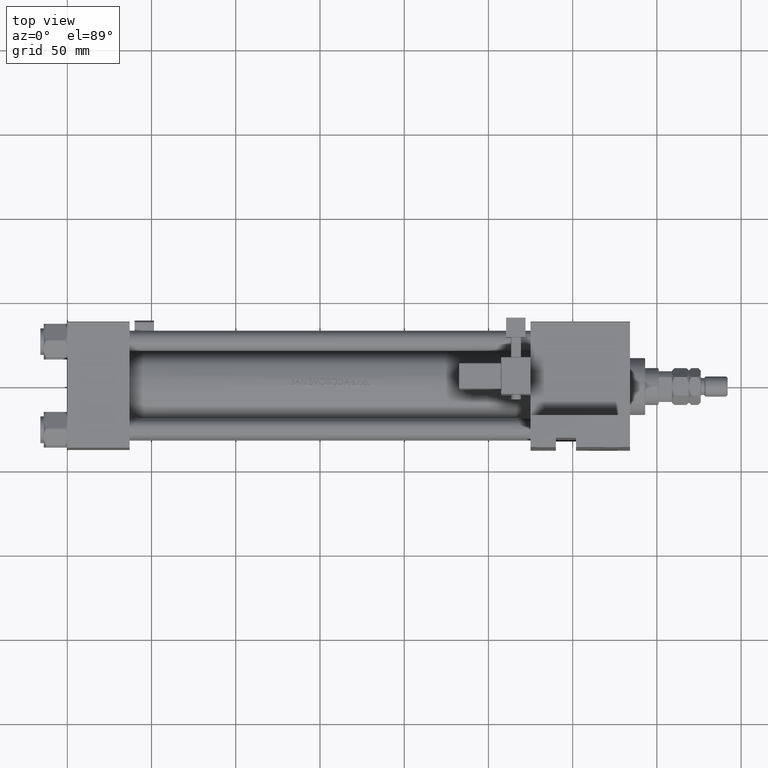
[diagram: clean part render]
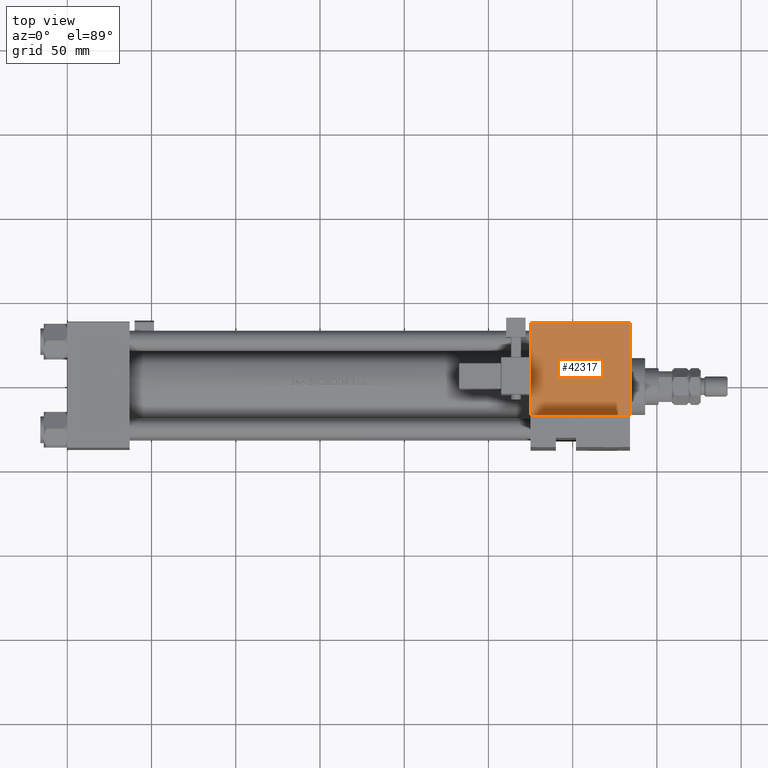
[diagram: same view with one face highlighted and labeled with its STEP entity id]
A machine part, top view. The second image highlights one B-rep face of the part: STEP entity #42317.
In plain terms, the highlighted planar face has unit normal (0, -0, -1).
Its self-contained STEP definition (entity closure, byte-faithful):
#1133 = DIRECTION ( 'NONE',  ( 0.000000000000000000, -9.251858538542972814E-17, -1.000000000000000000 ) ) ;
#1710 = VECTOR ( 'NONE', #10284, 1000.000000000000000 ) ;
#2085 = CARTESIAN_POINT ( 'NONE',  ( 333.9999999999999432, -37.50000000000000000, 37.49999999999997868 ) ) ;
#3459 = DIRECTION ( 'NONE',  ( 1.000000000000000000, -1.176083712526648949E-16, 0.000000000000000000 ) ) ;
#4808 = AXIS2_PLACEMENT_3D ( 'NONE', #2085, #33776, #8870 ) ;
#6561 = VECTOR ( 'NONE', #1133, 1000.000000000000000 ) ;
#7129 = EDGE_CURVE ( 'NONE', #26375, #44575, #19819, .T. ) ;
#7703 = LINE ( 'NONE', #8228, #8166 ) ;
#8166 = VECTOR ( 'NONE', #27193, 1000.000000000000000 ) ;
#8228 = CARTESIAN_POINT ( 'NONE',  ( 333.9999999999999432, -37.50000000000000000, 37.49999999999997868 ) ) ;
#8870 = DIRECTION ( 'NONE',  ( 0.000000000000000000, 9.251858538542972814E-17, 1.000000000000000000 ) ) ;
#9721 = VERTEX_POINT ( 'NONE', #23668 ) ;
#10284 = DIRECTION ( 'NONE',  ( -1.000000000000000000, 0.000000000000000000, 0.000000000000000000 ) ) ;
#11131 = CARTESIAN_POINT ( 'NONE',  ( 274.9999999999999432, -37.50000000000000000, -18.50000000000000000 ) ) ;
#16722 = EDGE_LOOP ( 'NONE', ( #48685, #22484, #33867, #37276 ) ) ;
#19819 = LINE ( 'NONE', #39559, #40362 ) ;
#21136 = CARTESIAN_POINT ( 'NONE',  ( 274.9999999999999432, -37.50000000000000000, 37.49999999999997868 ) ) ;
#21333 = FACE_OUTER_BOUND ( 'NONE', #16722, .T. ) ;
#21611 = CARTESIAN_POINT ( 'NONE',  ( 333.9999999999999432, -37.50000000000000711, -18.50000000000000355 ) ) ;
#22484 = ORIENTED_EDGE ( 'NONE', *, *, #32081, .T. ) ;
#22744 = LINE ( 'NONE', #30048, #1710 ) ;
#23668 = CARTESIAN_POINT ( 'NONE',  ( 333.9999999999999432, -37.50000000000000000, 36.99999999999992184 ) ) ;
#26375 = VERTEX_POINT ( 'NONE', #11131 ) ;
#27193 = DIRECTION ( 'NONE',  ( 0.000000000000000000, -9.251858538542972814E-17, -1.000000000000000000 ) ) ;
#30048 = CARTESIAN_POINT ( 'NONE',  ( 333.9999999999999432, -37.50000000000000000, 36.99999999999992184 ) ) ;
#31890 = CARTESIAN_POINT ( 'NONE',  ( 274.9999999999999432, -37.50000000000000000, 36.99999999999992184 ) ) ;
#32081 = EDGE_CURVE ( 'NONE', #9721, #45979, #22744, .T. ) ;
#32822 = LINE ( 'NONE', #21136, #6561 ) ;
#33526 = PLANE ( 'NONE',  #4808 ) ;
#33776 = DIRECTION ( 'NONE',  ( 0.000000000000000000, 1.000000000000000000, -9.251858538542972814E-17 ) ) ;
#33867 = ORIENTED_EDGE ( 'NONE', *, *, #48105, .T. ) ;
#37276 = ORIENTED_EDGE ( 'NONE', *, *, #7129, .T. ) ;
#39559 = CARTESIAN_POINT ( 'NONE',  ( 274.9999999999999432, -37.50000000000000000, -18.50000000000000000 ) ) ;
#40362 = VECTOR ( 'NONE', #3459, 1000.000000000000000 ) ;
#42317 = ADVANCED_FACE ( 'NONE', ( #21333 ), #33526, .F. ) ;
#42788 = EDGE_CURVE ( 'NONE', #9721, #44575, #7703, .T. ) ;
#44575 = VERTEX_POINT ( 'NONE', #21611 ) ;
#45979 = VERTEX_POINT ( 'NONE', #31890 ) ;
#48105 = EDGE_CURVE ( 'NONE', #45979, #26375, #32822, .T. ) ;
#48685 = ORIENTED_EDGE ( 'NONE', *, *, #42788, .F. ) ;